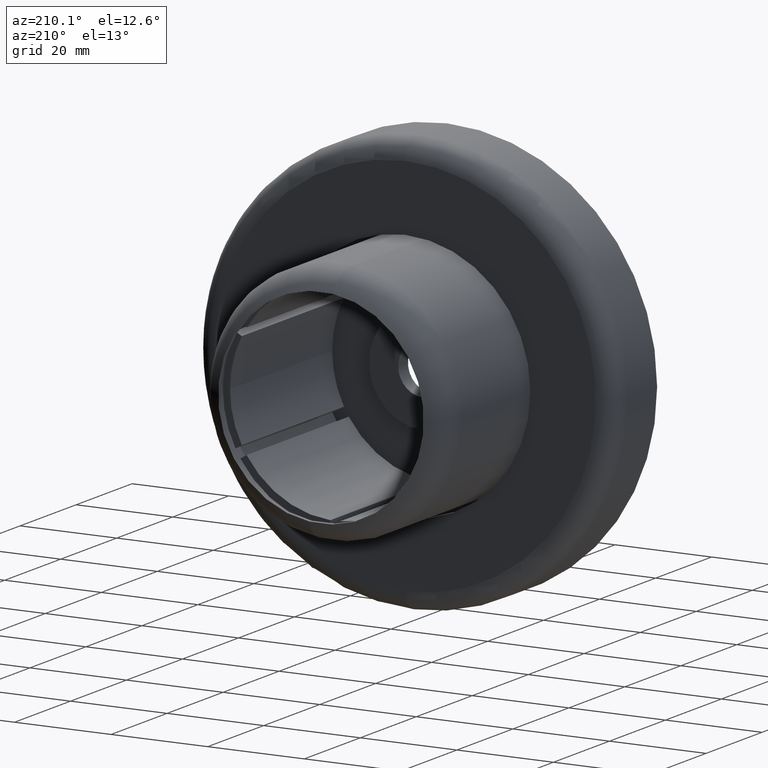
[diagram: clean part render]
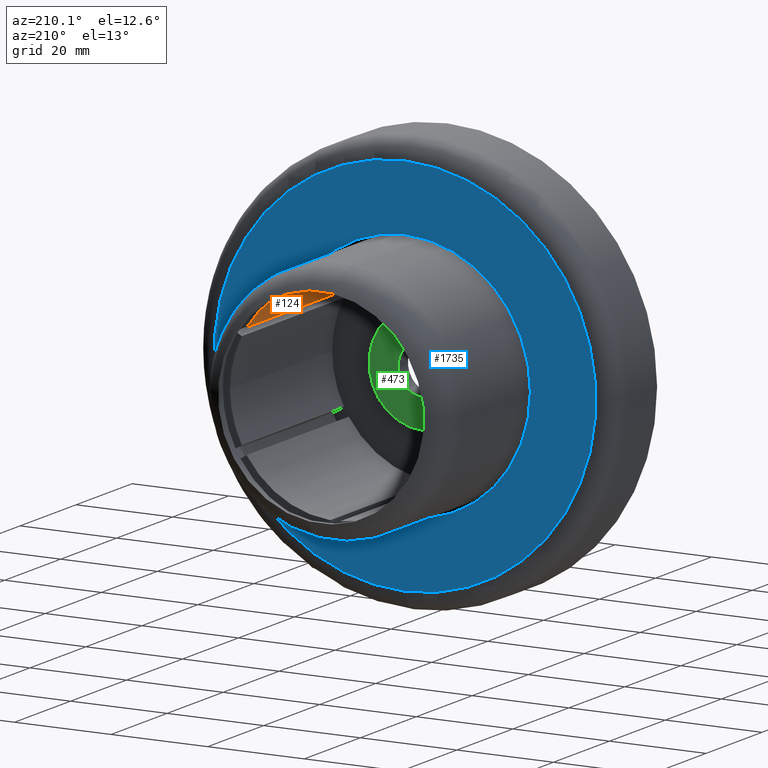
[diagram: same view with three faces highlighted in distinct colors, each labeled with its STEP entity id]
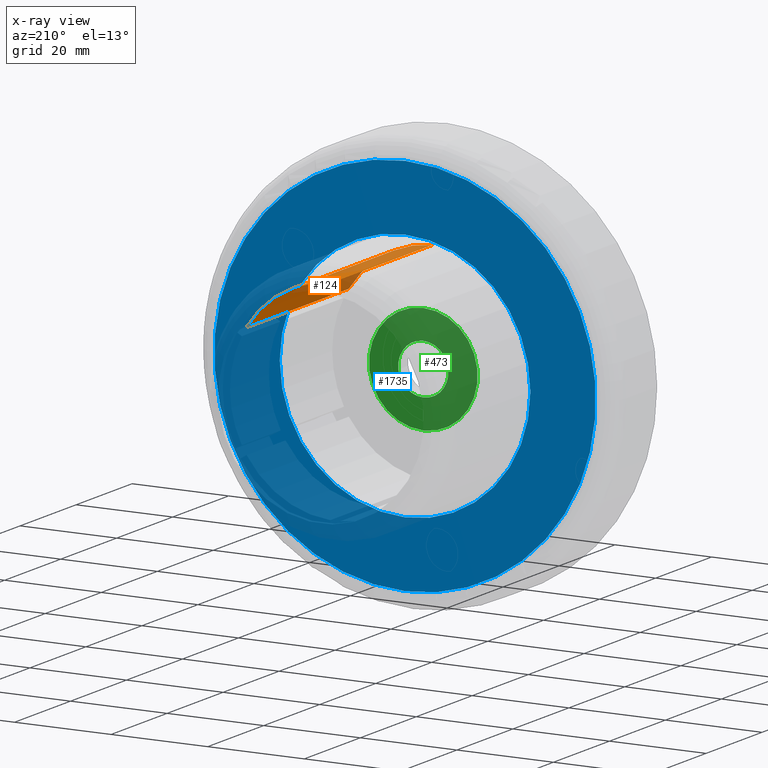
[diagram: x-ray of the same camera — body ghosted, the three highlighted faces saturated]
A machine part, auxiliary view with three faces highlighted in distinct colors.
The next image is the same camera in x-ray (body ghosted, the three faces saturated) — at least one of them is partly hidden behind the body in this view.
Their STEP definitions:

[orange] entity #124 — the highlighted cylindrical surface (partial cylindrical patch) has radius 21.75 mm, axis along (0, -1, 0).
#97 = EDGE_CURVE ( 'NONE', #666, #403, #656, .T. ) ;
#124 = ADVANCED_FACE ( 'NONE', ( #146 ), #1108, .F. ) ;
#146 = FACE_OUTER_BOUND ( 'NONE', #837, .T. ) ;
#163 = CARTESIAN_POINT ( 'NONE',  ( 1.000000000002015300, 40.00000000000001400, 21.72699933262749300 ) ) ;
#263 = DIRECTION ( 'NONE',  ( 1.000000000000000000, 3.190296047773438100E-016, 0.0000000000000000000 ) ) ;
#368 = AXIS2_PLACEMENT_3D ( 'NONE', #515, #1877, #263 ) ;
#403 = VERTEX_POINT ( 'NONE', #163 ) ;
#440 = CARTESIAN_POINT ( 'NONE',  ( 1.387778780781445700E-014, 3.500000000000000000, 0.0000000000000000000 ) ) ;
#515 = CARTESIAN_POINT ( 'NONE',  ( 0.0000000000000000000, 40.00000000000000700, 0.0000000000000000000 ) ) ;
#555 = DIRECTION ( 'NONE',  ( 3.802133645976562900E-016, -1.000000000000000000, -0.0000000000000000000 ) ) ;
#656 = CIRCLE ( 'NONE', #368, 21.75000000000000000 ) ;
#666 = VERTEX_POINT ( 'NONE', #2920 ) ;
#747 = ORIENTED_EDGE ( 'NONE', *, *, #2246, .T. ) ;
#754 = VERTEX_POINT ( 'NONE', #2952 ) ;
#837 = EDGE_LOOP ( 'NONE', ( #2620, #3269, #1349, #747 ) ) ;
#847 = CARTESIAN_POINT ( 'NONE',  ( 1.000000000002029700, 3.500000000000000400, 21.72699933262749600 ) ) ;
#972 = LINE ( 'NONE', #1566, #3019 ) ;
#1108 = CYLINDRICAL_SURFACE ( 'NONE', #3068, 21.74999999999999300 ) ;
#1198 = DIRECTION ( 'NONE',  ( 1.000000000000000000, 3.788476556730959200E-016, 0.0000000000000000000 ) ) ;
#1349 = ORIENTED_EDGE ( 'NONE', *, *, #1726, .F. ) ;
#1399 = DIRECTION ( 'NONE',  ( 3.802133645976562900E-016, -1.000000000000000000, -0.0000000000000000000 ) ) ;
#1566 = CARTESIAN_POINT ( 'NONE',  ( 18.31613337006388800, 3.500000000000007100, 11.72952507009691700 ) ) ;
#1576 = VECTOR ( 'NONE', #555, 1000.000000000000000 ) ;
#1726 = EDGE_CURVE ( 'NONE', #2655, #666, #972, .T. ) ;
#1742 = LINE ( 'NONE', #847, #1576 ) ;
#1877 = DIRECTION ( 'NONE',  ( 3.802133645976562900E-016, -1.000000000000000000, -0.0000000000000000000 ) ) ;
#2246 = EDGE_CURVE ( 'NONE', #2655, #754, #3243, .T. ) ;
#2418 = EDGE_CURVE ( 'NONE', #403, #754, #1742, .T. ) ;
#2620 = ORIENTED_EDGE ( 'NONE', *, *, #2418, .F. ) ;
#2655 = VERTEX_POINT ( 'NONE', #2782 ) ;
#2782 = CARTESIAN_POINT ( 'NONE',  ( 18.31613337006389500, 3.500000000000000000, 11.72952507009692100 ) ) ;
#2909 = DIRECTION ( 'NONE',  ( 1.776356839400250500E-015, 0.0000000000000000000, 1.000000000000000000 ) ) ;
#2920 = CARTESIAN_POINT ( 'NONE',  ( 18.31613337006388100, 40.00000000000002100, 11.72952507009692100 ) ) ;
#2925 = DIRECTION ( 'NONE',  ( -0.0000000000000000000, -1.000000000000000000, -0.0000000000000000000 ) ) ;
#2952 = CARTESIAN_POINT ( 'NONE',  ( 1.000000000002029700, 3.500000000000000000, 21.72699933262749600 ) ) ;
#3019 = VECTOR ( 'NONE', #3423, 1000.000000000000000 ) ;
#3068 = AXIS2_PLACEMENT_3D ( 'NONE', #3297, #1399, #1198 ) ;
#3243 = CIRCLE ( 'NONE', #3273, 21.74999999999999300 ) ;
#3269 = ORIENTED_EDGE ( 'NONE', *, *, #97, .F. ) ;
#3273 = AXIS2_PLACEMENT_3D ( 'NONE', #440, #2925, #2909 ) ;
#3297 = CARTESIAN_POINT ( 'NONE',  ( 1.387778780781445700E-014, 3.500000000000000000, 0.0000000000000000000 ) ) ;
#3423 = DIRECTION ( 'NONE',  ( -3.802133645976562900E-016, 1.000000000000000000, 0.0000000000000000000 ) ) ;

[blue] entity #1735 — the highlighted planar face has unit normal (0, 1, 0).
#1 = VERTEX_POINT ( 'NONE', #3380 ) ;
#70 = CARTESIAN_POINT ( 'NONE',  ( 0.0000000000000000000, 15.00000000000000000, 0.0000000000000000000 ) ) ;
#186 = FACE_OUTER_BOUND ( 'NONE', #3389, .T. ) ;
#225 = CARTESIAN_POINT ( 'NONE',  ( 0.0000000000000000000, 15.00000000000000000, 0.0000000000000000000 ) ) ;
#344 = CARTESIAN_POINT ( 'NONE',  ( 0.0000000000000000000, 15.00000000000000000, 0.0000000000000000000 ) ) ;
#465 = DIRECTION ( 'NONE',  ( 0.0000000000000000000, -0.0000000000000000000, 1.000000000000000000 ) ) ;
#500 = ORIENTED_EDGE ( 'NONE', *, *, #1714, .T. ) ;
#514 = VERTEX_POINT ( 'NONE', #2847 ) ;
#673 = AXIS2_PLACEMENT_3D ( 'NONE', #225, #1042, #465 ) ;
#1042 = DIRECTION ( 'NONE',  ( 0.0000000000000000000, 1.000000000000000000, 0.0000000000000000000 ) ) ;
#1162 = EDGE_CURVE ( 'NONE', #514, #1, #2391, .T. ) ;
#1345 = CARTESIAN_POINT ( 'NONE',  ( 0.0000000000000000000, 15.00000000000000000, 0.0000000000000000000 ) ) ;
#1438 = DIRECTION ( 'NONE',  ( 0.0000000000000000000, 0.0000000000000000000, 1.000000000000000000 ) ) ;
#1523 = EDGE_CURVE ( 'NONE', #2096, #3301, #3322, .T. ) ;
#1565 = AXIS2_PLACEMENT_3D ( 'NONE', #344, #2967, #1657 ) ;
#1657 = DIRECTION ( 'NONE',  ( 0.0000000000000000000, 0.0000000000000000000, 1.000000000000000000 ) ) ;
#1714 = EDGE_CURVE ( 'NONE', #3301, #2096, #2468, .T. ) ;
#1735 = ADVANCED_FACE ( 'NONE', ( #1912, #186 ), #2854, .T. ) ;
#1912 = FACE_BOUND ( 'NONE', #3132, .T. ) ;
#2036 = DIRECTION ( 'NONE',  ( 0.0000000000000000000, 0.0000000000000000000, 1.000000000000000000 ) ) ;
#2096 = VERTEX_POINT ( 'NONE', #3340 ) ;
#2133 = AXIS2_PLACEMENT_3D ( 'NONE', #1345, #3198, #2929 ) ;
#2391 = CIRCLE ( 'NONE', #1565, 25.94999999999999900 ) ;
#2392 = ORIENTED_EDGE ( 'NONE', *, *, #1523, .T. ) ;
#2459 = CIRCLE ( 'NONE', #2133, 25.94999999999999900 ) ;
#2468 = CIRCLE ( 'NONE', #3186, 39.49999999999999300 ) ;
#2487 = AXIS2_PLACEMENT_3D ( 'NONE', #70, #3014, #1438 ) ;
#2803 = DIRECTION ( 'NONE',  ( 0.0000000000000000000, 1.000000000000000000, 0.0000000000000000000 ) ) ;
#2847 = CARTESIAN_POINT ( 'NONE',  ( 0.0000000000000000000, 15.00000000000000000, 25.94999999999999900 ) ) ;
#2854 = PLANE ( 'NONE',  #673 ) ;
#2861 = EDGE_CURVE ( 'NONE', #1, #514, #2459, .T. ) ;
#2929 = DIRECTION ( 'NONE',  ( 0.0000000000000000000, 0.0000000000000000000, 1.000000000000000000 ) ) ;
#2967 = DIRECTION ( 'NONE',  ( 0.0000000000000000000, 1.000000000000000000, 0.0000000000000000000 ) ) ;
#3014 = DIRECTION ( 'NONE',  ( 0.0000000000000000000, 1.000000000000000000, 0.0000000000000000000 ) ) ;
#3107 = CARTESIAN_POINT ( 'NONE',  ( 0.0000000000000000000, 15.00000000000000000, 0.0000000000000000000 ) ) ;
#3127 = ORIENTED_EDGE ( 'NONE', *, *, #2861, .F. ) ;
#3132 = EDGE_LOOP ( 'NONE', ( #3167, #3127 ) ) ;
#3167 = ORIENTED_EDGE ( 'NONE', *, *, #1162, .F. ) ;
#3186 = AXIS2_PLACEMENT_3D ( 'NONE', #3107, #2803, #2036 ) ;
#3198 = DIRECTION ( 'NONE',  ( 0.0000000000000000000, 1.000000000000000000, 0.0000000000000000000 ) ) ;
#3301 = VERTEX_POINT ( 'NONE', #3401 ) ;
#3322 = CIRCLE ( 'NONE', #2487, 39.49999999999999300 ) ;
#3340 = CARTESIAN_POINT ( 'NONE',  ( 5.082284216461515000E-015, 15.00000000000000000, -39.49999999999999300 ) ) ;
#3380 = CARTESIAN_POINT ( 'NONE',  ( 3.177958443787381900E-015, 15.00000000000000000, -25.94999999999999900 ) ) ;
#3389 = EDGE_LOOP ( 'NONE', ( #500, #2392 ) ) ;
#3401 = CARTESIAN_POINT ( 'NONE',  ( 0.0000000000000000000, 15.00000000000000000, 39.49999999999999300 ) ) ;

[green] entity #473 — the highlighted planar face has unit normal (0, 1, 0).
#41 = DIRECTION ( 'NONE',  ( 0.0000000000000000000, 1.000000000000000000, 0.0000000000000000000 ) ) ;
#69 = CARTESIAN_POINT ( 'NONE',  ( 6.368163355566236400E-016, 8.500000000000000000, -5.200000000000000200 ) ) ;
#83 = DIRECTION ( 'NONE',  ( 0.0000000000000000000, 1.000000000000000000, 0.0000000000000000000 ) ) ;
#107 = VERTEX_POINT ( 'NONE', #69 ) ;
#123 = DIRECTION ( 'NONE',  ( 0.0000000000000000000, 0.0000000000000000000, 1.000000000000000000 ) ) ;
#205 = ORIENTED_EDGE ( 'NONE', *, *, #1544, .T. ) ;
#214 = ORIENTED_EDGE ( 'NONE', *, *, #2978, .F. ) ;
#274 = DIRECTION ( 'NONE',  ( 0.0000000000000000000, 0.0000000000000000000, 1.000000000000000000 ) ) ;
#299 = CARTESIAN_POINT ( 'NONE',  ( 1.377727649040772600E-015, 8.500000000000000000, 11.25000000000000200 ) ) ;
#347 = CIRCLE ( 'NONE', #3136, 5.200000000000000200 ) ;
#350 = VERTEX_POINT ( 'NONE', #299 ) ;
#473 = ADVANCED_FACE ( 'NONE', ( #1155, #3020 ), #484, .T. ) ;
#477 = CIRCLE ( 'NONE', #915, 11.25000000000000200 ) ;
#484 = PLANE ( 'NONE',  #2279 ) ;
#710 = ORIENTED_EDGE ( 'NONE', *, *, #3226, .T. ) ;
#785 = AXIS2_PLACEMENT_3D ( 'NONE', #3008, #83, #2484 ) ;
#788 = VERTEX_POINT ( 'NONE', #1443 ) ;
#915 = AXIS2_PLACEMENT_3D ( 'NONE', #1463, #3327, #123 ) ;
#984 = DIRECTION ( 'NONE',  ( 0.0000000000000000000, 1.000000000000000000, 0.0000000000000000000 ) ) ;
#985 = ORIENTED_EDGE ( 'NONE', *, *, #2465, .F. ) ;
#1155 = FACE_BOUND ( 'NONE', #1844, .T. ) ;
#1280 = CIRCLE ( 'NONE', #785, 11.25000000000000200 ) ;
#1443 = CARTESIAN_POINT ( 'NONE',  ( 0.0000000000000000000, 8.500000000000000000, 5.200000000000000200 ) ) ;
#1463 = CARTESIAN_POINT ( 'NONE',  ( 0.0000000000000000000, 8.500000000000000000, 0.0000000000000000000 ) ) ;
#1544 = EDGE_CURVE ( 'NONE', #350, #3392, #1280, .T. ) ;
#1581 = DIRECTION ( 'NONE',  ( 0.0000000000000000000, 1.000000000000000000, 0.0000000000000000000 ) ) ;
#1603 = EDGE_LOOP ( 'NONE', ( #710, #205 ) ) ;
#1619 = DIRECTION ( 'NONE',  ( 0.0000000000000000000, 0.0000000000000000000, 1.000000000000000000 ) ) ;
#1844 = EDGE_LOOP ( 'NONE', ( #214, #985 ) ) ;
#2161 = CARTESIAN_POINT ( 'NONE',  ( 0.0000000000000000000, 8.500000000000000000, 0.0000000000000000000 ) ) ;
#2191 = AXIS2_PLACEMENT_3D ( 'NONE', #2161, #41, #274 ) ;
#2279 = AXIS2_PLACEMENT_3D ( 'NONE', #2578, #984, #3143 ) ;
#2465 = EDGE_CURVE ( 'NONE', #107, #788, #2759, .T. ) ;
#2484 = DIRECTION ( 'NONE',  ( 0.0000000000000000000, 0.0000000000000000000, 1.000000000000000000 ) ) ;
#2578 = CARTESIAN_POINT ( 'NONE',  ( 0.0000000000000000000, 8.500000000000000000, 0.0000000000000000000 ) ) ;
#2635 = CARTESIAN_POINT ( 'NONE',  ( 0.0000000000000000000, 8.500000000000000000, 0.0000000000000000000 ) ) ;
#2759 = CIRCLE ( 'NONE', #2191, 5.200000000000000200 ) ;
#2918 = CARTESIAN_POINT ( 'NONE',  ( 0.0000000000000000000, 8.500000000000000000, -11.25000000000000200 ) ) ;
#2978 = EDGE_CURVE ( 'NONE', #788, #107, #347, .T. ) ;
#3008 = CARTESIAN_POINT ( 'NONE',  ( 0.0000000000000000000, 8.500000000000000000, 0.0000000000000000000 ) ) ;
#3020 = FACE_OUTER_BOUND ( 'NONE', #1603, .T. ) ;
#3136 = AXIS2_PLACEMENT_3D ( 'NONE', #2635, #1581, #1619 ) ;
#3143 = DIRECTION ( 'NONE',  ( 0.0000000000000000000, -0.0000000000000000000, 1.000000000000000000 ) ) ;
#3226 = EDGE_CURVE ( 'NONE', #3392, #350, #477, .T. ) ;
#3327 = DIRECTION ( 'NONE',  ( 0.0000000000000000000, 1.000000000000000000, 0.0000000000000000000 ) ) ;
#3392 = VERTEX_POINT ( 'NONE', #2918 ) ;